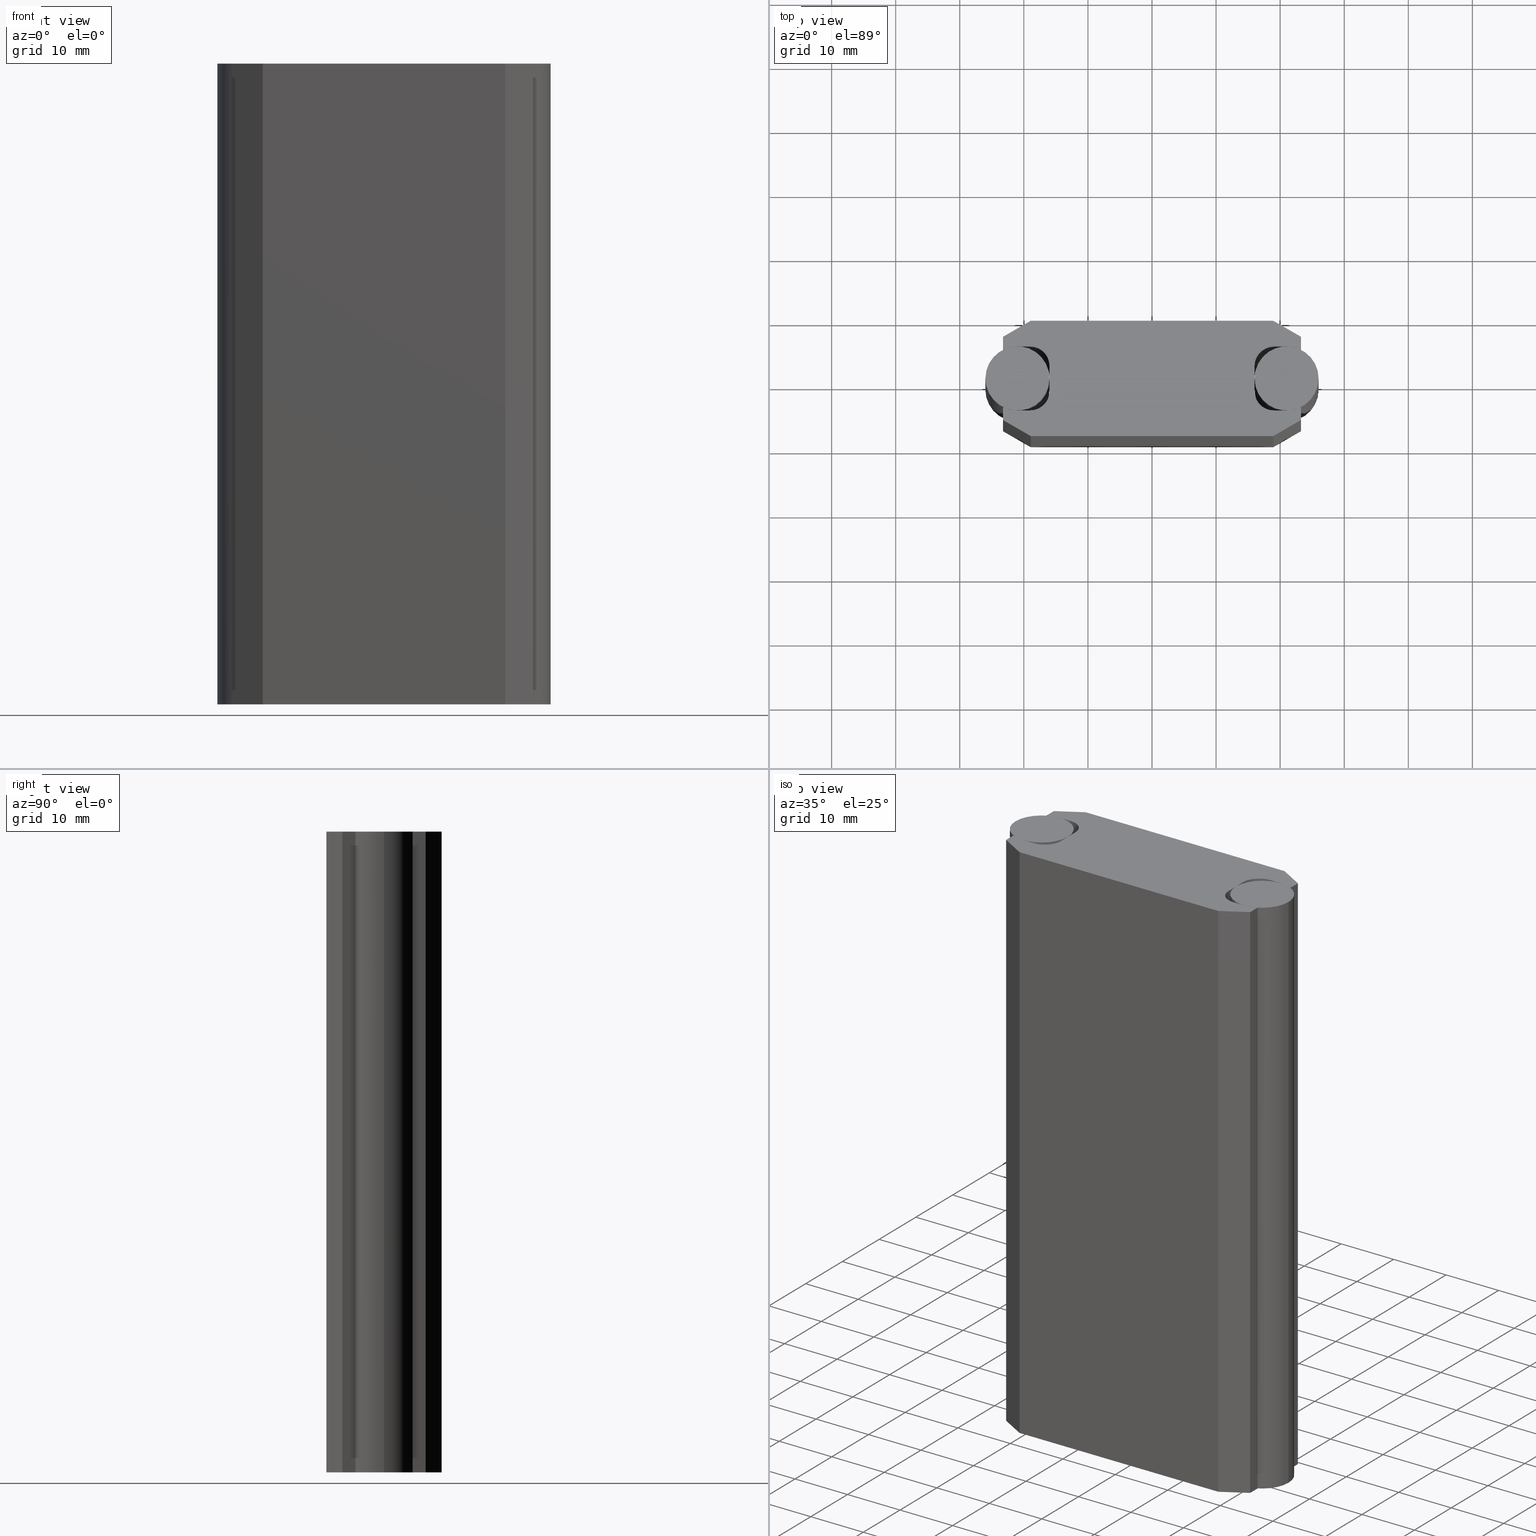
[diagram: canonical four-view strip — front | top / right | iso, engineering-drawing reading convention]
A machine part, canonical four-view strip (front | top / right | iso — engineering-drawing reading convention). The complete STEP part file that produces these views, byte-faithful:
ISO-10303-21;
HEADER;
/* Generated by software containing ST-Developer
 * from STEP Tools, Inc. (www.steptools.com) 
 */

FILE_DESCRIPTION(
/* description */ ('PROFILO GUIDA LINEARE ACS 52F ALB. D.10 '),
/* implementation_level */ '2;1');

FILE_NAME(
/* name */ 
'C:\\Users\\tecnico7\\Desktop\\NUOVI DISEGNI 3D\\DM80PGL0014-A.stp',
/* time_stamp */ '2022-12-07T15:24:55+01:00',
/* author */ ('tecnico7'),
/* organization */ (''),
/* preprocessor_version */ 'ST-DEVELOPER v18.1',
/* originating_system */ 'Autodesk Inventor 2022',
/* authorisation */ '');

FILE_SCHEMA (('AUTOMOTIVE_DESIGN { 1 0 10303 214 3 1 1 }'));
ENDSEC;

DATA;
#10=MECHANICAL_DESIGN_GEOMETRIC_PRESENTATION_REPRESENTATION('',(#27,#28),
#1001);
#11=ITEM_DEFINED_TRANSFORMATION($,$,#619,#668);
#12=ITEM_DEFINED_TRANSFORMATION($,$,#662,#669);
#13=ITEM_DEFINED_TRANSFORMATION($,$,#662,#670);
#14=(
REPRESENTATION_RELATIONSHIP($,$,#1016,#1015)
REPRESENTATION_RELATIONSHIP_WITH_TRANSFORMATION(#11)
SHAPE_REPRESENTATION_RELATIONSHIP()
);
#15=(
REPRESENTATION_RELATIONSHIP($,$,#1017,#1015)
REPRESENTATION_RELATIONSHIP_WITH_TRANSFORMATION(#12)
SHAPE_REPRESENTATION_RELATIONSHIP()
);
#16=(
REPRESENTATION_RELATIONSHIP($,$,#1017,#1015)
REPRESENTATION_RELATIONSHIP_WITH_TRANSFORMATION(#13)
SHAPE_REPRESENTATION_RELATIONSHIP()
);
#17=CONTEXT_DEPENDENT_SHAPE_REPRESENTATION(#14,#1012);
#18=CONTEXT_DEPENDENT_SHAPE_REPRESENTATION(#15,#1013);
#19=CONTEXT_DEPENDENT_SHAPE_REPRESENTATION(#16,#1014);
#20=NEXT_ASSEMBLY_USAGE_OCCURRENCE('952510020102:1','952510020102:1',
'952510020102:1',#1019,#1020,'952510020102:1');
#21=NEXT_ASSEMBLY_USAGE_OCCURRENCE('952510020103:2','952510020103:2',
'952510020103:2',#1019,#1021,'952510020103:2');
#22=NEXT_ASSEMBLY_USAGE_OCCURRENCE('952510020103:3','952510020103:3',
'952510020103:3',#1019,#1021,'952510020103:3');
#23=SHAPE_REPRESENTATION_RELATIONSHIP('SRR','None',#1016,#25);
#24=SHAPE_REPRESENTATION_RELATIONSHIP('SRR','None',#1017,#26);
#25=ADVANCED_BREP_SHAPE_REPRESENTATION('',(#29),#999);
#26=ADVANCED_BREP_SHAPE_REPRESENTATION('',(#30),#1000);
#27=STYLED_ITEM('',(#582),#29);
#28=STYLED_ITEM('',(#583),#30);
#29=MANIFOLD_SOLID_BREP('Solido1',#554);
#30=MANIFOLD_SOLID_BREP('Solido1',#555);
#31=CYLINDRICAL_SURFACE('',#630,4.99999999999993);
#32=CYLINDRICAL_SURFACE('',#637,5.);
#33=CYLINDRICAL_SURFACE('',#640,3.00000000000001);
#34=CYLINDRICAL_SURFACE('',#643,3.00000000000001);
#35=CYLINDRICAL_SURFACE('',#646,5.);
#36=CYLINDRICAL_SURFACE('',#653,5.);
#37=CYLINDRICAL_SURFACE('',#656,3.00000000000001);
#38=CYLINDRICAL_SURFACE('',#659,3.00000000000001);
#39=CYLINDRICAL_SURFACE('',#663,5.);
#40=FACE_OUTER_BOUND('',#69,.T.);
#41=FACE_OUTER_BOUND('',#70,.T.);
#42=FACE_OUTER_BOUND('',#71,.T.);
#43=FACE_OUTER_BOUND('',#72,.T.);
#44=FACE_OUTER_BOUND('',#73,.T.);
#45=FACE_OUTER_BOUND('',#74,.T.);
#46=FACE_OUTER_BOUND('',#75,.T.);
#47=FACE_OUTER_BOUND('',#76,.T.);
#48=FACE_OUTER_BOUND('',#77,.T.);
#49=FACE_OUTER_BOUND('',#78,.T.);
#50=FACE_OUTER_BOUND('',#79,.T.);
#51=FACE_OUTER_BOUND('',#80,.T.);
#52=FACE_OUTER_BOUND('',#81,.T.);
#53=FACE_OUTER_BOUND('',#82,.T.);
#54=FACE_OUTER_BOUND('',#83,.T.);
#55=FACE_OUTER_BOUND('',#84,.T.);
#56=FACE_OUTER_BOUND('',#85,.T.);
#57=FACE_OUTER_BOUND('',#86,.T.);
#58=FACE_OUTER_BOUND('',#87,.T.);
#59=FACE_OUTER_BOUND('',#88,.T.);
#60=FACE_OUTER_BOUND('',#89,.T.);
#61=FACE_OUTER_BOUND('',#90,.T.);
#62=FACE_OUTER_BOUND('',#91,.T.);
#63=FACE_OUTER_BOUND('',#92,.T.);
#64=FACE_OUTER_BOUND('',#93,.T.);
#65=FACE_OUTER_BOUND('',#94,.T.);
#66=FACE_OUTER_BOUND('',#95,.T.);
#67=FACE_OUTER_BOUND('',#96,.T.);
#68=FACE_OUTER_BOUND('',#97,.T.);
#69=EDGE_LOOP('',(#355,#356,#357,#358,#359,#360,#361,#362,#363,#364,#365,
#366,#367,#368,#369,#370,#371,#372,#373,#374,#375,#376,#377,#378));
#70=EDGE_LOOP('',(#379,#380,#381,#382));
#71=EDGE_LOOP('',(#383,#384,#385,#386));
#72=EDGE_LOOP('',(#387,#388,#389,#390));
#73=EDGE_LOOP('',(#391,#392,#393,#394));
#74=EDGE_LOOP('',(#395,#396,#397,#398));
#75=EDGE_LOOP('',(#399,#400,#401,#402));
#76=EDGE_LOOP('',(#403,#404,#405,#406));
#77=EDGE_LOOP('',(#407,#408,#409,#410));
#78=EDGE_LOOP('',(#411,#412,#413,#414));
#79=EDGE_LOOP('',(#415,#416,#417,#418));
#80=EDGE_LOOP('',(#419,#420,#421,#422));
#81=EDGE_LOOP('',(#423,#424,#425,#426));
#82=EDGE_LOOP('',(#427,#428,#429,#430));
#83=EDGE_LOOP('',(#431,#432,#433,#434));
#84=EDGE_LOOP('',(#435,#436,#437,#438));
#85=EDGE_LOOP('',(#439,#440,#441,#442));
#86=EDGE_LOOP('',(#443,#444,#445,#446));
#87=EDGE_LOOP('',(#447,#448,#449,#450));
#88=EDGE_LOOP('',(#451,#452,#453,#454));
#89=EDGE_LOOP('',(#455,#456,#457,#458));
#90=EDGE_LOOP('',(#459,#460,#461,#462));
#91=EDGE_LOOP('',(#463,#464,#465,#466));
#92=EDGE_LOOP('',(#467,#468,#469,#470));
#93=EDGE_LOOP('',(#471,#472,#473,#474));
#94=EDGE_LOOP('',(#475,#476,#477,#478,#479,#480,#481,#482,#483,#484,#485,
#486,#487,#488,#489,#490,#491,#492,#493,#494,#495,#496,#497,#498));
#95=EDGE_LOOP('',(#499,#500,#501,#502));
#96=EDGE_LOOP('',(#503));
#97=EDGE_LOOP('',(#504));
#98=LINE('',#841,#155);
#99=LINE('',#845,#156);
#100=LINE('',#847,#157);
#101=LINE('',#849,#158);
#102=LINE('',#851,#159);
#103=LINE('',#853,#160);
#104=LINE('',#857,#161);
#105=LINE('',#861,#162);
#106=LINE('',#865,#163);
#107=LINE('',#869,#164);
#108=LINE('',#871,#165);
#109=LINE('',#873,#166);
#110=LINE('',#875,#167);
#111=LINE('',#877,#168);
#112=LINE('',#881,#169);
#113=LINE('',#884,#170);
#114=LINE('',#887,#171);
#115=LINE('',#889,#172);
#116=LINE('',#890,#173);
#117=LINE('',#894,#174);
#118=LINE('',#897,#175);
#119=LINE('',#898,#176);
#120=LINE('',#901,#177);
#121=LINE('',#902,#178);
#122=LINE('',#905,#179);
#123=LINE('',#906,#180);
#124=LINE('',#909,#181);
#125=LINE('',#910,#182);
#126=LINE('',#913,#183);
#127=LINE('',#914,#184);
#128=LINE('',#918,#185);
#129=LINE('',#921,#186);
#130=LINE('',#922,#187);
#131=LINE('',#926,#188);
#132=LINE('',#929,#189);
#133=LINE('',#930,#190);
#134=LINE('',#934,#191);
#135=LINE('',#937,#192);
#136=LINE('',#938,#193);
#137=LINE('',#942,#194);
#138=LINE('',#945,#195);
#139=LINE('',#946,#196);
#140=LINE('',#949,#197);
#141=LINE('',#950,#198);
#142=LINE('',#953,#199);
#143=LINE('',#954,#200);
#144=LINE('',#957,#201);
#145=LINE('',#958,#202);
#146=LINE('',#961,#203);
#147=LINE('',#962,#204);
#148=LINE('',#966,#205);
#149=LINE('',#969,#206);
#150=LINE('',#970,#207);
#151=LINE('',#974,#208);
#152=LINE('',#977,#209);
#153=LINE('',#978,#210);
#154=LINE('',#987,#211);
#155=VECTOR('',#679,10.);
#156=VECTOR('',#682,10.);
#157=VECTOR('',#683,10.);
#158=VECTOR('',#684,10.);
#159=VECTOR('',#685,10.);
#160=VECTOR('',#686,10.);
#161=VECTOR('',#689,10.);
#162=VECTOR('',#692,10.);
#163=VECTOR('',#695,10.);
#164=VECTOR('',#698,10.);
#165=VECTOR('',#699,10.);
#166=VECTOR('',#700,10.);
#167=VECTOR('',#701,10.);
#168=VECTOR('',#702,10.);
#169=VECTOR('',#705,10.);
#170=VECTOR('',#708,10.);
#171=VECTOR('',#711,10.);
#172=VECTOR('',#712,10.);
#173=VECTOR('',#713,10.);
#174=VECTOR('',#718,10.);
#175=VECTOR('',#721,10.);
#176=VECTOR('',#722,10.);
#177=VECTOR('',#725,10.);
#178=VECTOR('',#726,10.);
#179=VECTOR('',#729,10.);
#180=VECTOR('',#730,10.);
#181=VECTOR('',#733,10.);
#182=VECTOR('',#734,10.);
#183=VECTOR('',#737,10.);
#184=VECTOR('',#738,10.);
#185=VECTOR('',#743,10.);
#186=VECTOR('',#746,10.);
#187=VECTOR('',#747,10.);
#188=VECTOR('',#752,10.);
#189=VECTOR('',#755,10.);
#190=VECTOR('',#756,10.);
#191=VECTOR('',#761,10.);
#192=VECTOR('',#764,10.);
#193=VECTOR('',#765,10.);
#194=VECTOR('',#770,10.);
#195=VECTOR('',#773,10.);
#196=VECTOR('',#774,10.);
#197=VECTOR('',#777,10.);
#198=VECTOR('',#778,10.);
#199=VECTOR('',#781,10.);
#200=VECTOR('',#782,10.);
#201=VECTOR('',#785,10.);
#202=VECTOR('',#786,10.);
#203=VECTOR('',#789,10.);
#204=VECTOR('',#790,10.);
#205=VECTOR('',#795,10.);
#206=VECTOR('',#798,10.);
#207=VECTOR('',#799,10.);
#208=VECTOR('',#804,10.);
#209=VECTOR('',#807,10.);
#210=VECTOR('',#808,10.);
#211=VECTOR('',#821,5.);
#212=CIRCLE('',#621,3.00000000000001);
#213=CIRCLE('',#622,4.99999999999993);
#214=CIRCLE('',#623,5.);
#215=CIRCLE('',#624,3.00000000000001);
#216=CIRCLE('',#625,3.00000000000001);
#217=CIRCLE('',#626,5.);
#218=CIRCLE('',#627,5.);
#219=CIRCLE('',#628,3.00000000000001);
#220=CIRCLE('',#631,4.99999999999993);
#221=CIRCLE('',#638,5.);
#222=CIRCLE('',#641,3.00000000000001);
#223=CIRCLE('',#644,3.00000000000001);
#224=CIRCLE('',#647,5.);
#225=CIRCLE('',#654,5.);
#226=CIRCLE('',#657,3.00000000000001);
#227=CIRCLE('',#660,3.00000000000001);
#228=CIRCLE('',#664,5.);
#229=CIRCLE('',#665,5.);
#230=VERTEX_POINT('',#837);
#231=VERTEX_POINT('',#838);
#232=VERTEX_POINT('',#840);
#233=VERTEX_POINT('',#842);
#234=VERTEX_POINT('',#844);
#235=VERTEX_POINT('',#846);
#236=VERTEX_POINT('',#848);
#237=VERTEX_POINT('',#850);
#238=VERTEX_POINT('',#852);
#239=VERTEX_POINT('',#854);
#240=VERTEX_POINT('',#856);
#241=VERTEX_POINT('',#858);
#242=VERTEX_POINT('',#860);
#243=VERTEX_POINT('',#862);
#244=VERTEX_POINT('',#864);
#245=VERTEX_POINT('',#866);
#246=VERTEX_POINT('',#868);
#247=VERTEX_POINT('',#870);
#248=VERTEX_POINT('',#872);
#249=VERTEX_POINT('',#874);
#250=VERTEX_POINT('',#876);
#251=VERTEX_POINT('',#878);
#252=VERTEX_POINT('',#880);
#253=VERTEX_POINT('',#882);
#254=VERTEX_POINT('',#886);
#255=VERTEX_POINT('',#888);
#256=VERTEX_POINT('',#892);
#257=VERTEX_POINT('',#896);
#258=VERTEX_POINT('',#900);
#259=VERTEX_POINT('',#904);
#260=VERTEX_POINT('',#908);
#261=VERTEX_POINT('',#912);
#262=VERTEX_POINT('',#916);
#263=VERTEX_POINT('',#920);
#264=VERTEX_POINT('',#924);
#265=VERTEX_POINT('',#928);
#266=VERTEX_POINT('',#932);
#267=VERTEX_POINT('',#936);
#268=VERTEX_POINT('',#940);
#269=VERTEX_POINT('',#944);
#270=VERTEX_POINT('',#948);
#271=VERTEX_POINT('',#952);
#272=VERTEX_POINT('',#956);
#273=VERTEX_POINT('',#960);
#274=VERTEX_POINT('',#964);
#275=VERTEX_POINT('',#968);
#276=VERTEX_POINT('',#972);
#277=VERTEX_POINT('',#976);
#278=VERTEX_POINT('',#984);
#279=VERTEX_POINT('',#986);
#280=EDGE_CURVE('',#230,#231,#212,.T.);
#281=EDGE_CURVE('',#231,#232,#98,.T.);
#282=EDGE_CURVE('',#232,#233,#213,.T.);
#283=EDGE_CURVE('',#233,#234,#99,.T.);
#284=EDGE_CURVE('',#234,#235,#100,.T.);
#285=EDGE_CURVE('',#235,#236,#101,.T.);
#286=EDGE_CURVE('',#236,#237,#102,.T.);
#287=EDGE_CURVE('',#237,#238,#103,.T.);
#288=EDGE_CURVE('',#238,#239,#214,.T.);
#289=EDGE_CURVE('',#239,#240,#104,.T.);
#290=EDGE_CURVE('',#240,#241,#215,.T.);
#291=EDGE_CURVE('',#241,#242,#105,.T.);
#292=EDGE_CURVE('',#242,#243,#216,.T.);
#293=EDGE_CURVE('',#243,#244,#106,.T.);
#294=EDGE_CURVE('',#244,#245,#217,.T.);
#295=EDGE_CURVE('',#245,#246,#107,.T.);
#296=EDGE_CURVE('',#246,#247,#108,.T.);
#297=EDGE_CURVE('',#247,#248,#109,.T.);
#298=EDGE_CURVE('',#248,#249,#110,.T.);
#299=EDGE_CURVE('',#249,#250,#111,.T.);
#300=EDGE_CURVE('',#250,#251,#218,.T.);
#301=EDGE_CURVE('',#251,#252,#112,.T.);
#302=EDGE_CURVE('',#252,#253,#219,.T.);
#303=EDGE_CURVE('',#253,#230,#113,.T.);
#304=EDGE_CURVE('',#254,#231,#114,.T.);
#305=EDGE_CURVE('',#255,#254,#115,.T.);
#306=EDGE_CURVE('',#255,#232,#116,.T.);
#307=EDGE_CURVE('',#256,#255,#220,.T.);
#308=EDGE_CURVE('',#256,#233,#117,.T.);
#309=EDGE_CURVE('',#257,#256,#118,.T.);
#310=EDGE_CURVE('',#257,#234,#119,.T.);
#311=EDGE_CURVE('',#258,#257,#120,.T.);
#312=EDGE_CURVE('',#258,#235,#121,.T.);
#313=EDGE_CURVE('',#259,#258,#122,.T.);
#314=EDGE_CURVE('',#259,#236,#123,.T.);
#315=EDGE_CURVE('',#260,#259,#124,.T.);
#316=EDGE_CURVE('',#260,#237,#125,.T.);
#317=EDGE_CURVE('',#261,#260,#126,.T.);
#318=EDGE_CURVE('',#261,#238,#127,.T.);
#319=EDGE_CURVE('',#262,#261,#221,.T.);
#320=EDGE_CURVE('',#262,#239,#128,.T.);
#321=EDGE_CURVE('',#263,#262,#129,.T.);
#322=EDGE_CURVE('',#263,#240,#130,.T.);
#323=EDGE_CURVE('',#264,#263,#222,.T.);
#324=EDGE_CURVE('',#264,#241,#131,.T.);
#325=EDGE_CURVE('',#265,#264,#132,.T.);
#326=EDGE_CURVE('',#265,#242,#133,.T.);
#327=EDGE_CURVE('',#266,#265,#223,.T.);
#328=EDGE_CURVE('',#266,#243,#134,.T.);
#329=EDGE_CURVE('',#267,#266,#135,.T.);
#330=EDGE_CURVE('',#267,#244,#136,.T.);
#331=EDGE_CURVE('',#268,#267,#224,.T.);
#332=EDGE_CURVE('',#268,#245,#137,.T.);
#333=EDGE_CURVE('',#269,#268,#138,.T.);
#334=EDGE_CURVE('',#269,#246,#139,.T.);
#335=EDGE_CURVE('',#270,#269,#140,.T.);
#336=EDGE_CURVE('',#270,#247,#141,.T.);
#337=EDGE_CURVE('',#271,#270,#142,.T.);
#338=EDGE_CURVE('',#271,#248,#143,.T.);
#339=EDGE_CURVE('',#272,#271,#144,.T.);
#340=EDGE_CURVE('',#272,#249,#145,.T.);
#341=EDGE_CURVE('',#273,#272,#146,.T.);
#342=EDGE_CURVE('',#273,#250,#147,.T.);
#343=EDGE_CURVE('',#274,#273,#225,.T.);
#344=EDGE_CURVE('',#274,#251,#148,.T.);
#345=EDGE_CURVE('',#275,#274,#149,.T.);
#346=EDGE_CURVE('',#275,#252,#150,.T.);
#347=EDGE_CURVE('',#276,#275,#226,.T.);
#348=EDGE_CURVE('',#276,#253,#151,.T.);
#349=EDGE_CURVE('',#277,#276,#152,.T.);
#350=EDGE_CURVE('',#230,#277,#153,.T.);
#351=EDGE_CURVE('',#254,#277,#227,.T.);
#352=EDGE_CURVE('',#278,#278,#228,.T.);
#353=EDGE_CURVE('',#278,#279,#154,.T.);
#354=EDGE_CURVE('',#279,#279,#229,.T.);
#355=ORIENTED_EDGE('',*,*,#280,.T.);
#356=ORIENTED_EDGE('',*,*,#281,.T.);
#357=ORIENTED_EDGE('',*,*,#282,.T.);
#358=ORIENTED_EDGE('',*,*,#283,.T.);
#359=ORIENTED_EDGE('',*,*,#284,.T.);
#360=ORIENTED_EDGE('',*,*,#285,.T.);
#361=ORIENTED_EDGE('',*,*,#286,.T.);
#362=ORIENTED_EDGE('',*,*,#287,.T.);
#363=ORIENTED_EDGE('',*,*,#288,.T.);
#364=ORIENTED_EDGE('',*,*,#289,.T.);
#365=ORIENTED_EDGE('',*,*,#290,.T.);
#366=ORIENTED_EDGE('',*,*,#291,.T.);
#367=ORIENTED_EDGE('',*,*,#292,.T.);
#368=ORIENTED_EDGE('',*,*,#293,.T.);
#369=ORIENTED_EDGE('',*,*,#294,.T.);
#370=ORIENTED_EDGE('',*,*,#295,.T.);
#371=ORIENTED_EDGE('',*,*,#296,.T.);
#372=ORIENTED_EDGE('',*,*,#297,.T.);
#373=ORIENTED_EDGE('',*,*,#298,.T.);
#374=ORIENTED_EDGE('',*,*,#299,.T.);
#375=ORIENTED_EDGE('',*,*,#300,.T.);
#376=ORIENTED_EDGE('',*,*,#301,.T.);
#377=ORIENTED_EDGE('',*,*,#302,.T.);
#378=ORIENTED_EDGE('',*,*,#303,.T.);
#379=ORIENTED_EDGE('',*,*,#304,.F.);
#380=ORIENTED_EDGE('',*,*,#305,.F.);
#381=ORIENTED_EDGE('',*,*,#306,.T.);
#382=ORIENTED_EDGE('',*,*,#281,.F.);
#383=ORIENTED_EDGE('',*,*,#306,.F.);
#384=ORIENTED_EDGE('',*,*,#307,.F.);
#385=ORIENTED_EDGE('',*,*,#308,.T.);
#386=ORIENTED_EDGE('',*,*,#282,.F.);
#387=ORIENTED_EDGE('',*,*,#308,.F.);
#388=ORIENTED_EDGE('',*,*,#309,.F.);
#389=ORIENTED_EDGE('',*,*,#310,.T.);
#390=ORIENTED_EDGE('',*,*,#283,.F.);
#391=ORIENTED_EDGE('',*,*,#310,.F.);
#392=ORIENTED_EDGE('',*,*,#311,.F.);
#393=ORIENTED_EDGE('',*,*,#312,.T.);
#394=ORIENTED_EDGE('',*,*,#284,.F.);
#395=ORIENTED_EDGE('',*,*,#312,.F.);
#396=ORIENTED_EDGE('',*,*,#313,.F.);
#397=ORIENTED_EDGE('',*,*,#314,.T.);
#398=ORIENTED_EDGE('',*,*,#285,.F.);
#399=ORIENTED_EDGE('',*,*,#314,.F.);
#400=ORIENTED_EDGE('',*,*,#315,.F.);
#401=ORIENTED_EDGE('',*,*,#316,.T.);
#402=ORIENTED_EDGE('',*,*,#286,.F.);
#403=ORIENTED_EDGE('',*,*,#316,.F.);
#404=ORIENTED_EDGE('',*,*,#317,.F.);
#405=ORIENTED_EDGE('',*,*,#318,.T.);
#406=ORIENTED_EDGE('',*,*,#287,.F.);
#407=ORIENTED_EDGE('',*,*,#318,.F.);
#408=ORIENTED_EDGE('',*,*,#319,.F.);
#409=ORIENTED_EDGE('',*,*,#320,.T.);
#410=ORIENTED_EDGE('',*,*,#288,.F.);
#411=ORIENTED_EDGE('',*,*,#320,.F.);
#412=ORIENTED_EDGE('',*,*,#321,.F.);
#413=ORIENTED_EDGE('',*,*,#322,.T.);
#414=ORIENTED_EDGE('',*,*,#289,.F.);
#415=ORIENTED_EDGE('',*,*,#322,.F.);
#416=ORIENTED_EDGE('',*,*,#323,.F.);
#417=ORIENTED_EDGE('',*,*,#324,.T.);
#418=ORIENTED_EDGE('',*,*,#290,.F.);
#419=ORIENTED_EDGE('',*,*,#324,.F.);
#420=ORIENTED_EDGE('',*,*,#325,.F.);
#421=ORIENTED_EDGE('',*,*,#326,.T.);
#422=ORIENTED_EDGE('',*,*,#291,.F.);
#423=ORIENTED_EDGE('',*,*,#326,.F.);
#424=ORIENTED_EDGE('',*,*,#327,.F.);
#425=ORIENTED_EDGE('',*,*,#328,.T.);
#426=ORIENTED_EDGE('',*,*,#292,.F.);
#427=ORIENTED_EDGE('',*,*,#328,.F.);
#428=ORIENTED_EDGE('',*,*,#329,.F.);
#429=ORIENTED_EDGE('',*,*,#330,.T.);
#430=ORIENTED_EDGE('',*,*,#293,.F.);
#431=ORIENTED_EDGE('',*,*,#330,.F.);
#432=ORIENTED_EDGE('',*,*,#331,.F.);
#433=ORIENTED_EDGE('',*,*,#332,.T.);
#434=ORIENTED_EDGE('',*,*,#294,.F.);
#435=ORIENTED_EDGE('',*,*,#332,.F.);
#436=ORIENTED_EDGE('',*,*,#333,.F.);
#437=ORIENTED_EDGE('',*,*,#334,.T.);
#438=ORIENTED_EDGE('',*,*,#295,.F.);
#439=ORIENTED_EDGE('',*,*,#334,.F.);
#440=ORIENTED_EDGE('',*,*,#335,.F.);
#441=ORIENTED_EDGE('',*,*,#336,.T.);
#442=ORIENTED_EDGE('',*,*,#296,.F.);
#443=ORIENTED_EDGE('',*,*,#336,.F.);
#444=ORIENTED_EDGE('',*,*,#337,.F.);
#445=ORIENTED_EDGE('',*,*,#338,.T.);
#446=ORIENTED_EDGE('',*,*,#297,.F.);
#447=ORIENTED_EDGE('',*,*,#338,.F.);
#448=ORIENTED_EDGE('',*,*,#339,.F.);
#449=ORIENTED_EDGE('',*,*,#340,.T.);
#450=ORIENTED_EDGE('',*,*,#298,.F.);
#451=ORIENTED_EDGE('',*,*,#340,.F.);
#452=ORIENTED_EDGE('',*,*,#341,.F.);
#453=ORIENTED_EDGE('',*,*,#342,.T.);
#454=ORIENTED_EDGE('',*,*,#299,.F.);
#455=ORIENTED_EDGE('',*,*,#342,.F.);
#456=ORIENTED_EDGE('',*,*,#343,.F.);
#457=ORIENTED_EDGE('',*,*,#344,.T.);
#458=ORIENTED_EDGE('',*,*,#300,.F.);
#459=ORIENTED_EDGE('',*,*,#344,.F.);
#460=ORIENTED_EDGE('',*,*,#345,.F.);
#461=ORIENTED_EDGE('',*,*,#346,.T.);
#462=ORIENTED_EDGE('',*,*,#301,.F.);
#463=ORIENTED_EDGE('',*,*,#346,.F.);
#464=ORIENTED_EDGE('',*,*,#347,.F.);
#465=ORIENTED_EDGE('',*,*,#348,.T.);
#466=ORIENTED_EDGE('',*,*,#302,.F.);
#467=ORIENTED_EDGE('',*,*,#348,.F.);
#468=ORIENTED_EDGE('',*,*,#349,.F.);
#469=ORIENTED_EDGE('',*,*,#350,.F.);
#470=ORIENTED_EDGE('',*,*,#303,.F.);
#471=ORIENTED_EDGE('',*,*,#350,.T.);
#472=ORIENTED_EDGE('',*,*,#351,.F.);
#473=ORIENTED_EDGE('',*,*,#304,.T.);
#474=ORIENTED_EDGE('',*,*,#280,.F.);
#475=ORIENTED_EDGE('',*,*,#351,.T.);
#476=ORIENTED_EDGE('',*,*,#349,.T.);
#477=ORIENTED_EDGE('',*,*,#347,.T.);
#478=ORIENTED_EDGE('',*,*,#345,.T.);
#479=ORIENTED_EDGE('',*,*,#343,.T.);
#480=ORIENTED_EDGE('',*,*,#341,.T.);
#481=ORIENTED_EDGE('',*,*,#339,.T.);
#482=ORIENTED_EDGE('',*,*,#337,.T.);
#483=ORIENTED_EDGE('',*,*,#335,.T.);
#484=ORIENTED_EDGE('',*,*,#333,.T.);
#485=ORIENTED_EDGE('',*,*,#331,.T.);
#486=ORIENTED_EDGE('',*,*,#329,.T.);
#487=ORIENTED_EDGE('',*,*,#327,.T.);
#488=ORIENTED_EDGE('',*,*,#325,.T.);
#489=ORIENTED_EDGE('',*,*,#323,.T.);
#490=ORIENTED_EDGE('',*,*,#321,.T.);
#491=ORIENTED_EDGE('',*,*,#319,.T.);
#492=ORIENTED_EDGE('',*,*,#317,.T.);
#493=ORIENTED_EDGE('',*,*,#315,.T.);
#494=ORIENTED_EDGE('',*,*,#313,.T.);
#495=ORIENTED_EDGE('',*,*,#311,.T.);
#496=ORIENTED_EDGE('',*,*,#309,.T.);
#497=ORIENTED_EDGE('',*,*,#307,.T.);
#498=ORIENTED_EDGE('',*,*,#305,.T.);
#499=ORIENTED_EDGE('',*,*,#352,.F.);
#500=ORIENTED_EDGE('',*,*,#353,.T.);
#501=ORIENTED_EDGE('',*,*,#354,.F.);
#502=ORIENTED_EDGE('',*,*,#353,.F.);
#503=ORIENTED_EDGE('',*,*,#352,.T.);
#504=ORIENTED_EDGE('',*,*,#354,.T.);
#505=PLANE('',#620);
#506=PLANE('',#629);
#507=PLANE('',#632);
#508=PLANE('',#633);
#509=PLANE('',#634);
#510=PLANE('',#635);
#511=PLANE('',#636);
#512=PLANE('',#639);
#513=PLANE('',#642);
#514=PLANE('',#645);
#515=PLANE('',#648);
#516=PLANE('',#649);
#517=PLANE('',#650);
#518=PLANE('',#651);
#519=PLANE('',#652);
#520=PLANE('',#655);
#521=PLANE('',#658);
#522=PLANE('',#661);
#523=PLANE('',#666);
#524=PLANE('',#667);
#525=ADVANCED_FACE('',(#40),#505,.F.);
#526=ADVANCED_FACE('',(#41),#506,.T.);
#527=ADVANCED_FACE('',(#42),#31,.F.);
#528=ADVANCED_FACE('',(#43),#507,.T.);
#529=ADVANCED_FACE('',(#44),#508,.T.);
#530=ADVANCED_FACE('',(#45),#509,.T.);
#531=ADVANCED_FACE('',(#46),#510,.T.);
#532=ADVANCED_FACE('',(#47),#511,.T.);
#533=ADVANCED_FACE('',(#48),#32,.F.);
#534=ADVANCED_FACE('',(#49),#512,.T.);
#535=ADVANCED_FACE('',(#50),#33,.F.);
#536=ADVANCED_FACE('',(#51),#513,.T.);
#537=ADVANCED_FACE('',(#52),#34,.F.);
#538=ADVANCED_FACE('',(#53),#514,.T.);
#539=ADVANCED_FACE('',(#54),#35,.F.);
#540=ADVANCED_FACE('',(#55),#515,.T.);
#541=ADVANCED_FACE('',(#56),#516,.T.);
#542=ADVANCED_FACE('',(#57),#517,.T.);
#543=ADVANCED_FACE('',(#58),#518,.T.);
#544=ADVANCED_FACE('',(#59),#519,.T.);
#545=ADVANCED_FACE('',(#60),#36,.F.);
#546=ADVANCED_FACE('',(#61),#520,.T.);
#547=ADVANCED_FACE('',(#62),#37,.F.);
#548=ADVANCED_FACE('',(#63),#521,.T.);
#549=ADVANCED_FACE('',(#64),#38,.F.);
#550=ADVANCED_FACE('',(#65),#522,.T.);
#551=ADVANCED_FACE('',(#66),#39,.T.);
#552=ADVANCED_FACE('',(#67),#523,.T.);
#553=ADVANCED_FACE('',(#68),#524,.F.);
#554=CLOSED_SHELL('',(#525,#526,#527,#528,#529,#530,#531,#532,#533,#534,
#535,#536,#537,#538,#539,#540,#541,#542,#543,#544,#545,#546,#547,#548,#549,
#550));
#555=CLOSED_SHELL('',(#551,#552,#553));
#556=DERIVED_UNIT_ELEMENT(#561,1.);
#557=DERIVED_UNIT_ELEMENT(#1003,-3.);
#558=DERIVED_UNIT_ELEMENT(#561,1.);
#559=DERIVED_UNIT_ELEMENT(#1003,-3.);
#560=DIMENSIONAL_EXPONENTS(1.,0.,0.,0.,0.,0.,0.);
#561=(
CONVERSION_BASED_UNIT('gram',#563)
MASS_UNIT()
NAMED_UNIT(#560)
);
#562=(
MASS_UNIT()
NAMED_UNIT(*)
SI_UNIT(.KILO.,.GRAM.)
);
#563=MASS_MEASURE_WITH_UNIT(MASS_MEASURE(0.001),#562);
#564=DERIVED_UNIT((#556,#557));
#565=DERIVED_UNIT((#558,#559));
#566=MEASURE_REPRESENTATION_ITEM('density measure',
POSITIVE_RATIO_MEASURE(2.71),#564);
#567=MEASURE_REPRESENTATION_ITEM('density measure',
POSITIVE_RATIO_MEASURE(7.87),#565);
#568=PROPERTY_DEFINITION_REPRESENTATION(#578,#572);
#569=PROPERTY_DEFINITION_REPRESENTATION(#579,#573);
#570=PROPERTY_DEFINITION_REPRESENTATION(#580,#574);
#571=PROPERTY_DEFINITION_REPRESENTATION(#581,#575);
#572=REPRESENTATION('material name',(#576),#999);
#573=REPRESENTATION('density',(#566),#999);
#574=REPRESENTATION('material name',(#577),#1000);
#575=REPRESENTATION('density',(#567),#1000);
#576=DESCRIPTIVE_REPRESENTATION_ITEM('Alluminio 6060 Anticorodal',
'Alluminio 6060 Anticorodal');
#577=DESCRIPTIVE_REPRESENTATION_ITEM('Acciaio 1 C40','Acciaio 1 C40');
#578=PROPERTY_DEFINITION('material property','material name',#1020);
#579=PROPERTY_DEFINITION('material property','density of part',#1020);
#580=PROPERTY_DEFINITION('material property','material name',#1021);
#581=PROPERTY_DEFINITION('material property','density of part',#1021);
#582=PRESENTATION_STYLE_ASSIGNMENT((#584));
#583=PRESENTATION_STYLE_ASSIGNMENT((#585));
#584=SURFACE_STYLE_USAGE(.BOTH.,#590);
#585=SURFACE_STYLE_USAGE(.BOTH.,#591);
#586=SURFACE_STYLE_RENDERING_WITH_PROPERTIES($,#598,(#588));
#587=SURFACE_STYLE_RENDERING_WITH_PROPERTIES($,#599,(#589));
#588=SURFACE_STYLE_TRANSPARENT(0.);
#589=SURFACE_STYLE_TRANSPARENT(0.);
#590=SURFACE_SIDE_STYLE('',(#592,#586));
#591=SURFACE_SIDE_STYLE('',(#593,#587));
#592=SURFACE_STYLE_FILL_AREA(#594);
#593=SURFACE_STYLE_FILL_AREA(#595);
#594=FILL_AREA_STYLE('',(#596));
#595=FILL_AREA_STYLE('',(#597));
#596=FILL_AREA_STYLE_COLOUR('',#598);
#597=FILL_AREA_STYLE_COLOUR('',#599);
#598=COLOUR_RGB('',0.811764705882353,0.8,0.823529411764706);
#599=COLOUR_RGB('',1.,1.,1.);
#600=DATE_TIME_ROLE('creation_date');
#601=DATE_TIME_ROLE('creation_date');
#602=DATE_TIME_ROLE('creation_date');
#603=APPLIED_DATE_AND_TIME_ASSIGNMENT(#606,#600,(#1019));
#604=APPLIED_DATE_AND_TIME_ASSIGNMENT(#607,#601,(#1020));
#605=APPLIED_DATE_AND_TIME_ASSIGNMENT(#608,#602,(#1021));
#606=DATE_AND_TIME(#609,#612);
#607=DATE_AND_TIME(#610,#613);
#608=DATE_AND_TIME(#611,#614);
#609=CALENDAR_DATE(2015,4,8);
#610=CALENDAR_DATE(2015,2,3);
#611=CALENDAR_DATE(2015,2,3);
#612=LOCAL_TIME(0,0,0.,#615);
#613=LOCAL_TIME(0,0,0.,#616);
#614=LOCAL_TIME(0,0,0.,#617);
#615=COORDINATED_UNIVERSAL_TIME_OFFSET(0,0,.BEHIND.);
#616=COORDINATED_UNIVERSAL_TIME_OFFSET(0,0,.BEHIND.);
#617=COORDINATED_UNIVERSAL_TIME_OFFSET(0,0,.BEHIND.);
#618=AXIS2_PLACEMENT_3D('placement',#834,#671,#672);
#619=AXIS2_PLACEMENT_3D('placement',#835,#673,#674);
#620=AXIS2_PLACEMENT_3D('',#836,#675,#676);
#621=AXIS2_PLACEMENT_3D('',#839,#677,#678);
#622=AXIS2_PLACEMENT_3D('',#843,#680,#681);
#623=AXIS2_PLACEMENT_3D('',#855,#687,#688);
#624=AXIS2_PLACEMENT_3D('',#859,#690,#691);
#625=AXIS2_PLACEMENT_3D('',#863,#693,#694);
#626=AXIS2_PLACEMENT_3D('',#867,#696,#697);
#627=AXIS2_PLACEMENT_3D('',#879,#703,#704);
#628=AXIS2_PLACEMENT_3D('',#883,#706,#707);
#629=AXIS2_PLACEMENT_3D('',#885,#709,#710);
#630=AXIS2_PLACEMENT_3D('',#891,#714,#715);
#631=AXIS2_PLACEMENT_3D('',#893,#716,#717);
#632=AXIS2_PLACEMENT_3D('',#895,#719,#720);
#633=AXIS2_PLACEMENT_3D('',#899,#723,#724);
#634=AXIS2_PLACEMENT_3D('',#903,#727,#728);
#635=AXIS2_PLACEMENT_3D('',#907,#731,#732);
#636=AXIS2_PLACEMENT_3D('',#911,#735,#736);
#637=AXIS2_PLACEMENT_3D('',#915,#739,#740);
#638=AXIS2_PLACEMENT_3D('',#917,#741,#742);
#639=AXIS2_PLACEMENT_3D('',#919,#744,#745);
#640=AXIS2_PLACEMENT_3D('',#923,#748,#749);
#641=AXIS2_PLACEMENT_3D('',#925,#750,#751);
#642=AXIS2_PLACEMENT_3D('',#927,#753,#754);
#643=AXIS2_PLACEMENT_3D('',#931,#757,#758);
#644=AXIS2_PLACEMENT_3D('',#933,#759,#760);
#645=AXIS2_PLACEMENT_3D('',#935,#762,#763);
#646=AXIS2_PLACEMENT_3D('',#939,#766,#767);
#647=AXIS2_PLACEMENT_3D('',#941,#768,#769);
#648=AXIS2_PLACEMENT_3D('',#943,#771,#772);
#649=AXIS2_PLACEMENT_3D('',#947,#775,#776);
#650=AXIS2_PLACEMENT_3D('',#951,#779,#780);
#651=AXIS2_PLACEMENT_3D('',#955,#783,#784);
#652=AXIS2_PLACEMENT_3D('',#959,#787,#788);
#653=AXIS2_PLACEMENT_3D('',#963,#791,#792);
#654=AXIS2_PLACEMENT_3D('',#965,#793,#794);
#655=AXIS2_PLACEMENT_3D('',#967,#796,#797);
#656=AXIS2_PLACEMENT_3D('',#971,#800,#801);
#657=AXIS2_PLACEMENT_3D('',#973,#802,#803);
#658=AXIS2_PLACEMENT_3D('',#975,#805,#806);
#659=AXIS2_PLACEMENT_3D('',#979,#809,#810);
#660=AXIS2_PLACEMENT_3D('',#980,#811,#812);
#661=AXIS2_PLACEMENT_3D('',#981,#813,#814);
#662=AXIS2_PLACEMENT_3D('placement',#982,#815,#816);
#663=AXIS2_PLACEMENT_3D('',#983,#817,#818);
#664=AXIS2_PLACEMENT_3D('',#985,#819,#820);
#665=AXIS2_PLACEMENT_3D('',#988,#822,#823);
#666=AXIS2_PLACEMENT_3D('',#989,#824,#825);
#667=AXIS2_PLACEMENT_3D('',#990,#826,#827);
#668=AXIS2_PLACEMENT_3D('',#991,#828,#829);
#669=AXIS2_PLACEMENT_3D('',#992,#830,#831);
#670=AXIS2_PLACEMENT_3D('',#993,#832,#833);
#671=DIRECTION('axis',(0.,0.,1.));
#672=DIRECTION('refdir',(1.,0.,0.));
#673=DIRECTION('axis',(0.,0.,1.));
#674=DIRECTION('refdir',(1.,0.,0.));
#675=DIRECTION('center_axis',(0.,0.,1.));
#676=DIRECTION('ref_axis',(1.,0.,0.));
#677=DIRECTION('center_axis',(0.,0.,1.));
#678=DIRECTION('ref_axis',(-1.,0.,0.));
#679=DIRECTION('',(1.,0.,0.));
#680=DIRECTION('center_axis',(0.,0.,1.));
#681=DIRECTION('ref_axis',(0.,-1.,0.));
#682=DIRECTION('',(2.18240967656226E-15,-1.,0.));
#683=DIRECTION('',(-0.866025403783333,-0.500000000001915,0.));
#684=DIRECTION('',(-1.,0.,0.));
#685=DIRECTION('',(-0.866025403783344,0.500000000001895,0.));
#686=DIRECTION('',(0.,1.,0.));
#687=DIRECTION('center_axis',(0.,0.,1.));
#688=DIRECTION('ref_axis',(-0.449999999997849,-0.893028554975671,0.));
#689=DIRECTION('',(1.,0.,0.));
#690=DIRECTION('center_axis',(0.,0.,1.));
#691=DIRECTION('ref_axis',(0.,-1.,0.));
#692=DIRECTION('',(0.,1.,0.));
#693=DIRECTION('center_axis',(0.,0.,1.));
#694=DIRECTION('ref_axis',(1.,0.,0.));
#695=DIRECTION('',(-1.,0.,0.));
#696=DIRECTION('center_axis',(0.,0.,1.));
#697=DIRECTION('ref_axis',(0.,1.,0.));
#698=DIRECTION('',(0.,1.,0.));
#699=DIRECTION('',(0.866025403783335,0.500000000001912,0.));
#700=DIRECTION('',(1.,0.,0.));
#701=DIRECTION('',(0.866025403783343,-0.500000000001898,0.));
#702=DIRECTION('',(0.,-1.,0.));
#703=DIRECTION('center_axis',(0.,0.,1.));
#704=DIRECTION('ref_axis',(0.449999999996703,0.893028554976249,0.));
#705=DIRECTION('',(-1.,0.,0.));
#706=DIRECTION('center_axis',(0.,0.,1.));
#707=DIRECTION('ref_axis',(0.,1.,0.));
#708=DIRECTION('',(0.,-1.,0.));
#709=DIRECTION('center_axis',(0.,1.,0.));
#710=DIRECTION('ref_axis',(-1.,0.,0.));
#711=DIRECTION('',(0.,0.,-1.));
#712=DIRECTION('',(-1.,0.,0.));
#713=DIRECTION('',(0.,0.,-1.));
#714=DIRECTION('center_axis',(0.,0.,1.));
#715=DIRECTION('ref_axis',(0.,-1.,0.));
#716=DIRECTION('center_axis',(0.,0.,-1.));
#717=DIRECTION('ref_axis',(0.,-1.,0.));
#718=DIRECTION('',(0.,0.,-1.));
#719=DIRECTION('center_axis',(1.,2.18240967656226E-15,0.));
#720=DIRECTION('ref_axis',(-2.18240967656226E-15,1.,0.));
#721=DIRECTION('',(-2.18240967656226E-15,1.,0.));
#722=DIRECTION('',(0.,0.,-1.));
#723=DIRECTION('center_axis',(0.500000000001915,-0.866025403783333,0.));
#724=DIRECTION('ref_axis',(0.866025403783333,0.500000000001915,0.));
#725=DIRECTION('',(0.866025403783333,0.500000000001915,0.));
#726=DIRECTION('',(0.,0.,-1.));
#727=DIRECTION('center_axis',(0.,-1.,0.));
#728=DIRECTION('ref_axis',(1.,0.,0.));
#729=DIRECTION('',(1.,0.,0.));
#730=DIRECTION('',(0.,0.,-1.));
#731=DIRECTION('center_axis',(-0.500000000001895,-0.866025403783344,0.));
#732=DIRECTION('ref_axis',(0.866025403783344,-0.500000000001895,0.));
#733=DIRECTION('',(0.866025403783344,-0.500000000001895,0.));
#734=DIRECTION('',(0.,0.,-1.));
#735=DIRECTION('center_axis',(-1.,0.,0.));
#736=DIRECTION('ref_axis',(0.,-1.,0.));
#737=DIRECTION('',(0.,-1.,0.));
#738=DIRECTION('',(0.,0.,-1.));
#739=DIRECTION('center_axis',(0.,0.,1.));
#740=DIRECTION('ref_axis',(-0.449999999997849,-0.893028554975671,0.));
#741=DIRECTION('center_axis',(0.,0.,-1.));
#742=DIRECTION('ref_axis',(-0.449999999997849,-0.893028554975671,0.));
#743=DIRECTION('',(0.,0.,-1.));
#744=DIRECTION('center_axis',(0.,1.,0.));
#745=DIRECTION('ref_axis',(-1.,0.,0.));
#746=DIRECTION('',(-1.,0.,0.));
#747=DIRECTION('',(0.,0.,-1.));
#748=DIRECTION('center_axis',(0.,0.,1.));
#749=DIRECTION('ref_axis',(0.,-1.,0.));
#750=DIRECTION('center_axis',(0.,0.,-1.));
#751=DIRECTION('ref_axis',(0.,-1.,0.));
#752=DIRECTION('',(0.,0.,-1.));
#753=DIRECTION('center_axis',(-1.,0.,0.));
#754=DIRECTION('ref_axis',(0.,-1.,0.));
#755=DIRECTION('',(0.,-1.,0.));
#756=DIRECTION('',(0.,0.,-1.));
#757=DIRECTION('center_axis',(0.,0.,1.));
#758=DIRECTION('ref_axis',(1.,0.,0.));
#759=DIRECTION('center_axis',(0.,0.,-1.));
#760=DIRECTION('ref_axis',(1.,0.,0.));
#761=DIRECTION('',(0.,0.,-1.));
#762=DIRECTION('center_axis',(0.,-1.,0.));
#763=DIRECTION('ref_axis',(1.,0.,0.));
#764=DIRECTION('',(1.,0.,0.));
#765=DIRECTION('',(0.,0.,-1.));
#766=DIRECTION('center_axis',(0.,0.,1.));
#767=DIRECTION('ref_axis',(0.,1.,0.));
#768=DIRECTION('center_axis',(0.,0.,-1.));
#769=DIRECTION('ref_axis',(0.,1.,0.));
#770=DIRECTION('',(0.,0.,-1.));
#771=DIRECTION('center_axis',(-1.,0.,0.));
#772=DIRECTION('ref_axis',(0.,-1.,0.));
#773=DIRECTION('',(0.,-1.,0.));
#774=DIRECTION('',(0.,0.,-1.));
#775=DIRECTION('center_axis',(-0.500000000001912,0.866025403783335,0.));
#776=DIRECTION('ref_axis',(-0.866025403783335,-0.500000000001912,0.));
#777=DIRECTION('',(-0.866025403783335,-0.500000000001912,0.));
#778=DIRECTION('',(0.,0.,-1.));
#779=DIRECTION('center_axis',(0.,1.,0.));
#780=DIRECTION('ref_axis',(-1.,0.,0.));
#781=DIRECTION('',(-1.,0.,0.));
#782=DIRECTION('',(0.,0.,-1.));
#783=DIRECTION('center_axis',(0.500000000001898,0.866025403783343,0.));
#784=DIRECTION('ref_axis',(-0.866025403783343,0.500000000001898,0.));
#785=DIRECTION('',(-0.866025403783343,0.500000000001898,0.));
#786=DIRECTION('',(0.,0.,-1.));
#787=DIRECTION('center_axis',(1.,0.,0.));
#788=DIRECTION('ref_axis',(0.,1.,0.));
#789=DIRECTION('',(0.,1.,0.));
#790=DIRECTION('',(0.,0.,-1.));
#791=DIRECTION('center_axis',(0.,0.,1.));
#792=DIRECTION('ref_axis',(0.449999999996703,0.893028554976249,0.));
#793=DIRECTION('center_axis',(0.,0.,-1.));
#794=DIRECTION('ref_axis',(0.449999999996703,0.893028554976249,0.));
#795=DIRECTION('',(0.,0.,-1.));
#796=DIRECTION('center_axis',(0.,-1.,0.));
#797=DIRECTION('ref_axis',(1.,0.,0.));
#798=DIRECTION('',(1.,0.,0.));
#799=DIRECTION('',(0.,0.,-1.));
#800=DIRECTION('center_axis',(0.,0.,1.));
#801=DIRECTION('ref_axis',(0.,1.,0.));
#802=DIRECTION('center_axis',(0.,0.,-1.));
#803=DIRECTION('ref_axis',(0.,1.,0.));
#804=DIRECTION('',(0.,0.,-1.));
#805=DIRECTION('center_axis',(1.,0.,0.));
#806=DIRECTION('ref_axis',(0.,1.,0.));
#807=DIRECTION('',(0.,1.,0.));
#808=DIRECTION('',(0.,0.,1.));
#809=DIRECTION('center_axis',(0.,0.,1.));
#810=DIRECTION('ref_axis',(-1.,0.,0.));
#811=DIRECTION('center_axis',(0.,0.,-1.));
#812=DIRECTION('ref_axis',(-1.,0.,0.));
#813=DIRECTION('center_axis',(0.,0.,1.));
#814=DIRECTION('ref_axis',(1.,0.,0.));
#815=DIRECTION('axis',(0.,0.,1.));
#816=DIRECTION('refdir',(1.,0.,0.));
#817=DIRECTION('center_axis',(0.,0.,1.));
#818=DIRECTION('ref_axis',(-1.,0.,0.));
#819=DIRECTION('center_axis',(0.,0.,1.));
#820=DIRECTION('ref_axis',(-1.,0.,0.));
#821=DIRECTION('',(0.,0.,-1.));
#822=DIRECTION('center_axis',(0.,0.,-1.));
#823=DIRECTION('ref_axis',(-1.,0.,0.));
#824=DIRECTION('center_axis',(0.,0.,1.));
#825=DIRECTION('ref_axis',(1.,0.,0.));
#826=DIRECTION('center_axis',(0.,0.,1.));
#827=DIRECTION('ref_axis',(1.,0.,0.));
#828=DIRECTION('',(0.,0.,1.));
#829=DIRECTION('',(1.,0.,0.));
#830=DIRECTION('',(0.,0.,1.));
#831=DIRECTION('',(1.,0.,0.));
#832=DIRECTION('',(0.,0.,1.));
#833=DIRECTION('',(1.,0.,0.));
#834=CARTESIAN_POINT('',(0.,0.,0.));
#835=CARTESIAN_POINT('',(0.,0.,0.));
#836=CARTESIAN_POINT('Origin',(-1.57247520116882E-10,-8.2591095813202E-11,
-50.));
#837=CARTESIAN_POINT('',(15.9999999998345,-2.00000000013731,-50.));
#838=CARTESIAN_POINT('',(18.9999999998345,-5.00000000013735,-50.));
#839=CARTESIAN_POINT('Origin',(18.9999999998345,-2.00000000013731,-50.));
#840=CARTESIAN_POINT('',(20.9999999998345,-5.00000000013735,-50.));
#841=CARTESIAN_POINT('',(18.9999999998345,-5.00000000013735,-50.));
#842=CARTESIAN_POINT('',(23.2499999998236,-4.46514277501578,-50.));
#843=CARTESIAN_POINT('Origin',(20.9999999998345,-1.37418965096003E-10,-50.));
#844=CARTESIAN_POINT('',(23.2499999998236,-6.50000000012483,-50.));
#845=CARTESIAN_POINT('',(23.2499999998236,-4.46514277501578,-50.));
#846=CARTESIAN_POINT('',(18.9198729809776,-9.00000000009364,-50.));
#847=CARTESIAN_POINT('',(23.2499999998236,-6.50000000012483,-50.));
#848=CARTESIAN_POINT('',(-18.9198729809776,-9.00000000009364,-50.));
#849=CARTESIAN_POINT('',(18.9198729809776,-9.00000000009364,-50.));
#850=CARTESIAN_POINT('',(-23.2500000001548,-6.49999999993376,-50.));
#851=CARTESIAN_POINT('',(-18.9198729809776,-9.00000000009364,-50.));
#852=CARTESIAN_POINT('',(-23.2500000001548,-4.46514277501571,-50.));
#853=CARTESIAN_POINT('',(-23.2500000001548,-6.49999999993376,-50.));
#854=CARTESIAN_POINT('',(-21.0000000001656,-5.00000000013735,-50.));
#855=CARTESIAN_POINT('Origin',(-21.0000000001656,-1.37418965096003E-10,
-50.));
#856=CARTESIAN_POINT('',(-19.0000000001656,-5.00000000013735,-50.));
#857=CARTESIAN_POINT('',(-21.0000000001656,-5.00000000013735,-50.));
#858=CARTESIAN_POINT('',(-16.0000000001656,-2.00000000013731,-50.));
#859=CARTESIAN_POINT('Origin',(-19.0000000001656,-2.00000000013731,-50.));
#860=CARTESIAN_POINT('',(-16.0000000001656,1.99999999986247,-50.));
#861=CARTESIAN_POINT('',(-16.0000000001656,-2.00000000013731,-50.));
#862=CARTESIAN_POINT('',(-19.0000000001656,4.99999999986251,-50.));
#863=CARTESIAN_POINT('Origin',(-19.0000000001656,1.99999999986247,-50.));
#864=CARTESIAN_POINT('',(-21.0000000001656,4.99999999986251,-50.));
#865=CARTESIAN_POINT('',(-19.0000000001656,4.99999999986251,-50.));
#866=CARTESIAN_POINT('',(-23.2500000001949,4.46514277472062,-50.));
#867=CARTESIAN_POINT('Origin',(-21.0000000001656,-1.37418965096003E-10,
-50.));
#868=CARTESIAN_POINT('',(-23.2500000001949,6.49999999990285,-50.));
#869=CARTESIAN_POINT('',(-23.2500000001949,4.46514277472062,-50.));
#870=CARTESIAN_POINT('',(-18.9198729812638,8.99999999992076,-50.));
#871=CARTESIAN_POINT('',(-23.2500000001949,6.49999999990285,-50.));
#872=CARTESIAN_POINT('',(18.9198729809177,8.99999999992076,-50.));
#873=CARTESIAN_POINT('',(-18.9198729812638,8.99999999992076,-50.));
#874=CARTESIAN_POINT('',(23.249999999818,6.49999999992076,-50.));
#875=CARTESIAN_POINT('',(18.9198729809177,8.99999999992076,-50.));
#876=CARTESIAN_POINT('',(23.249999999818,4.46514277474378,-50.));
#877=CARTESIAN_POINT('',(23.249999999818,6.49999999992076,-50.));
#878=CARTESIAN_POINT('',(20.9999999998345,4.99999999986251,-50.));
#879=CARTESIAN_POINT('Origin',(20.9999999998345,-1.37418965096003E-10,-50.));
#880=CARTESIAN_POINT('',(18.9999999998346,4.99999999986251,-50.));
#881=CARTESIAN_POINT('',(20.9999999998345,4.99999999986251,-50.));
#882=CARTESIAN_POINT('',(15.9999999998345,1.99999999986254,-50.));
#883=CARTESIAN_POINT('Origin',(18.9999999998346,1.99999999986254,-50.));
#884=CARTESIAN_POINT('',(15.9999999998345,1.99999999986254,-50.));
#885=CARTESIAN_POINT('Origin',(20.9999999998345,-5.00000000013735,0.));
#886=CARTESIAN_POINT('',(18.9999999998345,-5.00000000013735,50.));
#887=CARTESIAN_POINT('',(18.9999999998345,-5.00000000013735,0.));
#888=CARTESIAN_POINT('',(20.9999999998345,-5.00000000013735,50.));
#889=CARTESIAN_POINT('',(18.9999999998345,-5.00000000013735,50.));
#890=CARTESIAN_POINT('',(20.9999999998345,-5.00000000013735,0.));
#891=CARTESIAN_POINT('Origin',(20.9999999998345,-1.37418965096003E-10,0.));
#892=CARTESIAN_POINT('',(23.2499999998236,-4.46514277501578,50.));
#893=CARTESIAN_POINT('Origin',(20.9999999998345,-1.37418965096003E-10,50.));
#894=CARTESIAN_POINT('',(23.2499999998236,-4.46514277501578,0.));
#895=CARTESIAN_POINT('Origin',(23.2499999998236,-6.50000000012483,0.));
#896=CARTESIAN_POINT('',(23.2499999998236,-6.50000000012483,50.));
#897=CARTESIAN_POINT('',(23.2499999998236,-4.46514277501578,50.));
#898=CARTESIAN_POINT('',(23.2499999998236,-6.50000000012483,0.));
#899=CARTESIAN_POINT('Origin',(18.9198729809776,-9.00000000009364,0.));
#900=CARTESIAN_POINT('',(18.9198729809776,-9.00000000009364,50.));
#901=CARTESIAN_POINT('',(23.2499999998236,-6.50000000012483,50.));
#902=CARTESIAN_POINT('',(18.9198729809776,-9.00000000009364,0.));
#903=CARTESIAN_POINT('Origin',(-18.9198729809776,-9.00000000009364,0.));
#904=CARTESIAN_POINT('',(-18.9198729809776,-9.00000000009364,50.));
#905=CARTESIAN_POINT('',(18.9198729809776,-9.00000000009364,50.));
#906=CARTESIAN_POINT('',(-18.9198729809776,-9.00000000009364,0.));
#907=CARTESIAN_POINT('Origin',(-23.2500000001548,-6.49999999993376,0.));
#908=CARTESIAN_POINT('',(-23.2500000001548,-6.49999999993376,50.));
#909=CARTESIAN_POINT('',(-18.9198729809776,-9.00000000009364,50.));
#910=CARTESIAN_POINT('',(-23.2500000001548,-6.49999999993376,0.));
#911=CARTESIAN_POINT('Origin',(-23.2500000001548,-4.46514277501571,0.));
#912=CARTESIAN_POINT('',(-23.2500000001548,-4.46514277501571,50.));
#913=CARTESIAN_POINT('',(-23.2500000001548,-6.49999999993376,50.));
#914=CARTESIAN_POINT('',(-23.2500000001548,-4.46514277501571,0.));
#915=CARTESIAN_POINT('Origin',(-21.0000000001656,-1.37418965096003E-10,
0.));
#916=CARTESIAN_POINT('',(-21.0000000001656,-5.00000000013735,50.));
#917=CARTESIAN_POINT('Origin',(-21.0000000001656,-1.37418965096003E-10,
50.));
#918=CARTESIAN_POINT('',(-21.0000000001656,-5.00000000013735,0.));
#919=CARTESIAN_POINT('Origin',(-19.0000000001656,-5.00000000013735,0.));
#920=CARTESIAN_POINT('',(-19.0000000001656,-5.00000000013735,50.));
#921=CARTESIAN_POINT('',(-21.0000000001656,-5.00000000013735,50.));
#922=CARTESIAN_POINT('',(-19.0000000001656,-5.00000000013735,0.));
#923=CARTESIAN_POINT('Origin',(-19.0000000001656,-2.00000000013731,0.));
#924=CARTESIAN_POINT('',(-16.0000000001656,-2.00000000013731,50.));
#925=CARTESIAN_POINT('Origin',(-19.0000000001656,-2.00000000013731,50.));
#926=CARTESIAN_POINT('',(-16.0000000001656,-2.00000000013731,0.));
#927=CARTESIAN_POINT('Origin',(-16.0000000001656,1.99999999986247,0.));
#928=CARTESIAN_POINT('',(-16.0000000001656,1.99999999986247,50.));
#929=CARTESIAN_POINT('',(-16.0000000001656,-2.00000000013731,50.));
#930=CARTESIAN_POINT('',(-16.0000000001656,1.99999999986247,0.));
#931=CARTESIAN_POINT('Origin',(-19.0000000001656,1.99999999986247,0.));
#932=CARTESIAN_POINT('',(-19.0000000001656,4.99999999986251,50.));
#933=CARTESIAN_POINT('Origin',(-19.0000000001656,1.99999999986247,50.));
#934=CARTESIAN_POINT('',(-19.0000000001656,4.99999999986251,0.));
#935=CARTESIAN_POINT('Origin',(-21.0000000001656,4.99999999986251,0.));
#936=CARTESIAN_POINT('',(-21.0000000001656,4.99999999986251,50.));
#937=CARTESIAN_POINT('',(-19.0000000001656,4.99999999986251,50.));
#938=CARTESIAN_POINT('',(-21.0000000001656,4.99999999986251,0.));
#939=CARTESIAN_POINT('Origin',(-21.0000000001656,-1.37418965096003E-10,
0.));
#940=CARTESIAN_POINT('',(-23.2500000001949,4.46514277472062,50.));
#941=CARTESIAN_POINT('Origin',(-21.0000000001656,-1.37418965096003E-10,
50.));
#942=CARTESIAN_POINT('',(-23.2500000001949,4.46514277472062,0.));
#943=CARTESIAN_POINT('Origin',(-23.2500000001949,6.49999999990285,0.));
#944=CARTESIAN_POINT('',(-23.2500000001949,6.49999999990285,50.));
#945=CARTESIAN_POINT('',(-23.2500000001949,4.46514277472062,50.));
#946=CARTESIAN_POINT('',(-23.2500000001949,6.49999999990285,0.));
#947=CARTESIAN_POINT('Origin',(-18.9198729812638,8.99999999992076,0.));
#948=CARTESIAN_POINT('',(-18.9198729812638,8.99999999992076,50.));
#949=CARTESIAN_POINT('',(-23.2500000001949,6.49999999990285,50.));
#950=CARTESIAN_POINT('',(-18.9198729812638,8.99999999992076,0.));
#951=CARTESIAN_POINT('Origin',(18.9198729809177,8.99999999992076,0.));
#952=CARTESIAN_POINT('',(18.9198729809177,8.99999999992076,50.));
#953=CARTESIAN_POINT('',(-18.9198729812638,8.99999999992076,50.));
#954=CARTESIAN_POINT('',(18.9198729809177,8.99999999992076,0.));
#955=CARTESIAN_POINT('Origin',(23.249999999818,6.49999999992076,0.));
#956=CARTESIAN_POINT('',(23.249999999818,6.49999999992076,50.));
#957=CARTESIAN_POINT('',(18.9198729809177,8.99999999992076,50.));
#958=CARTESIAN_POINT('',(23.249999999818,6.49999999992076,0.));
#959=CARTESIAN_POINT('Origin',(23.249999999818,4.46514277474378,0.));
#960=CARTESIAN_POINT('',(23.249999999818,4.46514277474378,50.));
#961=CARTESIAN_POINT('',(23.249999999818,6.49999999992076,50.));
#962=CARTESIAN_POINT('',(23.249999999818,4.46514277474378,0.));
#963=CARTESIAN_POINT('Origin',(20.9999999998345,-1.37418965096003E-10,0.));
#964=CARTESIAN_POINT('',(20.9999999998345,4.99999999986251,50.));
#965=CARTESIAN_POINT('Origin',(20.9999999998345,-1.37418965096003E-10,50.));
#966=CARTESIAN_POINT('',(20.9999999998345,4.99999999986251,0.));
#967=CARTESIAN_POINT('Origin',(18.9999999998346,4.99999999986251,0.));
#968=CARTESIAN_POINT('',(18.9999999998346,4.99999999986251,50.));
#969=CARTESIAN_POINT('',(20.9999999998345,4.99999999986251,50.));
#970=CARTESIAN_POINT('',(18.9999999998346,4.99999999986251,0.));
#971=CARTESIAN_POINT('Origin',(18.9999999998346,1.99999999986254,0.));
#972=CARTESIAN_POINT('',(15.9999999998345,1.99999999986254,50.));
#973=CARTESIAN_POINT('Origin',(18.9999999998346,1.99999999986254,50.));
#974=CARTESIAN_POINT('',(15.9999999998345,1.99999999986254,0.));
#975=CARTESIAN_POINT('Origin',(15.9999999998345,-2.00000000013731,0.));
#976=CARTESIAN_POINT('',(15.9999999998345,-2.00000000013731,50.));
#977=CARTESIAN_POINT('',(15.9999999998345,1.99999999986254,50.));
#978=CARTESIAN_POINT('',(15.9999999998345,-2.00000000013731,0.));
#979=CARTESIAN_POINT('Origin',(18.9999999998345,-2.00000000013731,0.));
#980=CARTESIAN_POINT('Origin',(18.9999999998345,-2.00000000013731,50.));
#981=CARTESIAN_POINT('Origin',(-1.57247520116882E-10,-8.2591095813202E-11,
50.));
#982=CARTESIAN_POINT('',(0.,0.,0.));
#983=CARTESIAN_POINT('Origin',(0.,0.,0.));
#984=CARTESIAN_POINT('',(5.,6.12323399573677E-16,100.));
#985=CARTESIAN_POINT('Origin',(0.,0.,100.));
#986=CARTESIAN_POINT('',(5.,6.12323399573677E-16,0.));
#987=CARTESIAN_POINT('',(5.,6.12323399573677E-16,0.));
#988=CARTESIAN_POINT('Origin',(0.,0.,0.));
#989=CARTESIAN_POINT('Origin',(-2.36064120735332E-16,9.25185853854297E-17,
100.));
#990=CARTESIAN_POINT('Origin',(-2.36064120735332E-16,9.25185853854297E-17,
0.));
#991=CARTESIAN_POINT('',(0.,0.,0.));
#992=CARTESIAN_POINT('',(-21.0000000001656,-1.37418965096003E-10,-50.));
#993=CARTESIAN_POINT('',(20.9999999998345,-1.37418965096003E-10,-50.));
#994=UNCERTAINTY_MEASURE_WITH_UNIT(LENGTH_MEASURE(0.01),#1002,
'DISTANCE_ACCURACY_VALUE',
'Maximum model space distance between geometric entities at asserted c
onnectivities');
#995=UNCERTAINTY_MEASURE_WITH_UNIT(LENGTH_MEASURE(0.01),#1002,
'DISTANCE_ACCURACY_VALUE',
'Maximum model space distance between geometric entities at asserted c
onnectivities');
#996=UNCERTAINTY_MEASURE_WITH_UNIT(LENGTH_MEASURE(0.01),#1002,
'DISTANCE_ACCURACY_VALUE',
'Maximum model space distance between geometric entities at asserted c
onnectivities');
#997=UNCERTAINTY_MEASURE_WITH_UNIT(LENGTH_MEASURE(0.01),#1002,
'DISTANCE_ACCURACY_VALUE',
'Maximum model space distance between geometric entities at asserted c
onnectivities');
#998=(
GEOMETRIC_REPRESENTATION_CONTEXT(3)
GLOBAL_UNCERTAINTY_ASSIGNED_CONTEXT((#994))
GLOBAL_UNIT_ASSIGNED_CONTEXT((#1002,#1004,#1005))
REPRESENTATION_CONTEXT('','3D')
);
#999=(
GEOMETRIC_REPRESENTATION_CONTEXT(3)
GLOBAL_UNCERTAINTY_ASSIGNED_CONTEXT((#995))
GLOBAL_UNIT_ASSIGNED_CONTEXT((#1002,#1004,#1005))
REPRESENTATION_CONTEXT('','3D')
);
#1000=(
GEOMETRIC_REPRESENTATION_CONTEXT(3)
GLOBAL_UNCERTAINTY_ASSIGNED_CONTEXT((#996))
GLOBAL_UNIT_ASSIGNED_CONTEXT((#1002,#1004,#1005))
REPRESENTATION_CONTEXT('','3D')
);
#1001=(
GEOMETRIC_REPRESENTATION_CONTEXT(3)
GLOBAL_UNCERTAINTY_ASSIGNED_CONTEXT((#997))
GLOBAL_UNIT_ASSIGNED_CONTEXT((#1002,#1004,#1005))
REPRESENTATION_CONTEXT('','3D')
);
#1002=(
LENGTH_UNIT()
NAMED_UNIT(*)
SI_UNIT(.MILLI.,.METRE.)
);
#1003=(
LENGTH_UNIT()
NAMED_UNIT(*)
SI_UNIT(.CENTI.,.METRE.)
);
#1004=(
NAMED_UNIT(*)
PLANE_ANGLE_UNIT()
SI_UNIT($,.RADIAN.)
);
#1005=(
NAMED_UNIT(*)
SI_UNIT($,.STERADIAN.)
SOLID_ANGLE_UNIT()
);
#1006=SHAPE_DEFINITION_REPRESENTATION(#1009,#1015);
#1007=SHAPE_DEFINITION_REPRESENTATION(#1010,#1016);
#1008=SHAPE_DEFINITION_REPRESENTATION(#1011,#1017);
#1009=PRODUCT_DEFINITION_SHAPE('',$,#1019);
#1010=PRODUCT_DEFINITION_SHAPE('',$,#1020);
#1011=PRODUCT_DEFINITION_SHAPE('',$,#1021);
#1012=PRODUCT_DEFINITION_SHAPE($,$,#20);
#1013=PRODUCT_DEFINITION_SHAPE($,$,#21);
#1014=PRODUCT_DEFINITION_SHAPE($,$,#22);
#1015=SHAPE_REPRESENTATION('',(#618,#668,#669,#670),#998);
#1016=SHAPE_REPRESENTATION('',(#619),#999);
#1017=SHAPE_REPRESENTATION('',(#662),#1000);
#1018=PRODUCT_DEFINITION_CONTEXT('part definition',#1029,'design');
#1019=PRODUCT_DEFINITION('DM80PGL0014-A','DM80PGL0014-A',#1022,#1018);
#1020=PRODUCT_DEFINITION('952510020102','952510020102',#1023,#1018);
#1021=PRODUCT_DEFINITION('952510020103','952510020103',#1024,#1018);
#1022=PRODUCT_DEFINITION_FORMATION('A',$,#1031);
#1023=PRODUCT_DEFINITION_FORMATION('A',$,#1032);
#1024=PRODUCT_DEFINITION_FORMATION('A',$,#1033);
#1025=PRODUCT_RELATED_PRODUCT_CATEGORY('DM80PGL0014-A','DM80PGL0014-A',
(#1031));
#1026=PRODUCT_RELATED_PRODUCT_CATEGORY('952510020102','952510020102',(#1032));
#1027=PRODUCT_RELATED_PRODUCT_CATEGORY('952510020103','952510020103',(#1033));
#1028=APPLICATION_PROTOCOL_DEFINITION('international standard',
'automotive_design',2009,#1029);
#1029=APPLICATION_CONTEXT(
'Core Data for Automotive Mechanical Design Process');
#1030=PRODUCT_CONTEXT('part definition',#1029,'mechanical');
#1031=PRODUCT('DM80PGL0014-A','DM80PGL0014-A',
'PROFILO GUIDA LINEARE ACS 52F ALB. D.10 ',(#1030));
#1032=PRODUCT('952510020102','952510020102','1',(#1030));
#1033=PRODUCT('952510020103','952510020103','111',(#1030));
ENDSEC;
END-ISO-10303-21;
